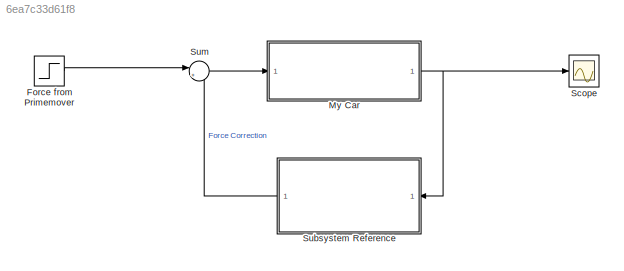
MODEL slx_6ea7c33d61f8
KIND model
CONFIG AbsTol = auto
CONFIG EnableMultiTasking = off
CONFIG FixedStep = 0.01
CONFIG MaxStep = auto
CONFIG MinStep = auto
CONFIG RelTol = 1e-3
CONFIG SampleTimeConstraint = Unconstrained
CONFIG SolverName = ode8
CONFIG StartTime = 0.0
CONFIG StopTime = 60
BLOCK [Step] Force from Primemover
  After = u
  SampleTime = 0.01
  Time = 0
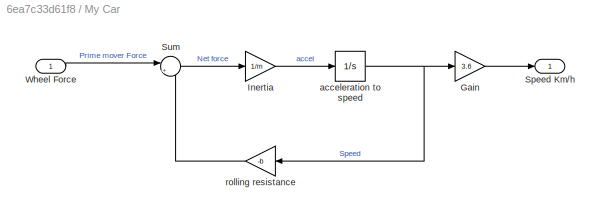
BLOCK [SubSystem] My Car
  Ports = [1, 1]
  RequestExecContextInheritance = off
BLOCK [Gain] My Car/Gain
  Gain = 3.6
BLOCK [Gain] My Car/Inertia
  Gain = 1/m
BLOCK [Outport] My Car/Speed Km//h
BLOCK [Sum] My Car/Sum
  Inputs = |++
  Ports = [2, 1]
BLOCK [Inport] My Car/Wheel Force
BLOCK [Integrator] My Car/acceleration to speed
  Ports = [1, 1]
BLOCK [Gain] My Car/rolling resistance
  Gain = -b
BLOCK [Scope] Scope
  Floating = off
  NumInputPorts = 1
  Ports = [1]
  ScopeSpecificationString = Simulink.scopes.TimeScopeBlockCfg('CurrentConfiguration', extmgr.ConfigurationSet(extmgr.Configuration('Core','General UI',true),extmgr.Configuration('Core','Source UI',true),extmgr.Configuration('Sources','WiredSimulink',true),extmgr.Configuration('Visuals','Time Domain',true,'SerializedDisplays',{struct('MinYLimReal','-6.61732','MaxYLimReal','59.55592','YLabelReal','','MinYLimMag','0.00000','Max...<+1407ch>
BLOCK [SubSystem] Subsystem Reference
  Ports = [1, 1]
  ReferencedSubsystem = PID_28Nov
  RequestExecContextInheritance = off
BLOCK [Sum] Sum
  Inputs = |++
  Ports = [2, 1]
LINE Force from Primemover:1 -> Sum:1
LINE My Car/Gain:1 -> My Car/Speed Km//h:1
LINE My Car/Inertia:1 -> My Car/acceleration to speed:1
LINE My Car/Sum:1 -> My Car/Inertia:1
LINE My Car/Wheel Force:1 -> My Car/Sum:1
NET My Car/acceleration to speed:1 -> My Car/Gain:1, My Car/rolling resistance:1
LINE My Car/rolling resistance:1 -> My Car/Sum:2
NET My Car:1 -> Scope:1, Subsystem Reference:1
LINE Subsystem Reference:1 -> Sum:2
LINE Sum:1 -> My Car:1
note: NET lines group one-source signal fan-out (src -> all destinations, sorted); 1:1 wires keep LINE
